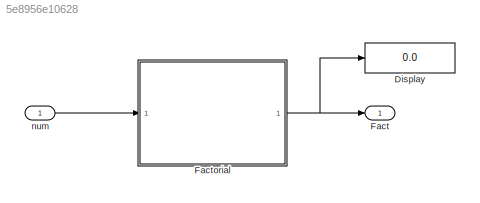
MODEL slx_5e8956e10628
KIND model
CONFIG AbsTol = auto
CONFIG EnableMultiTasking = off
CONFIG FixedStep = auto
CONFIG MaxStep = auto
CONFIG MinStep = auto
CONFIG RelTol = 1e-3
CONFIG SampleTimeConstraint = Unconstrained
CONFIG Solver = VariableStepAuto
CONFIG SolverName = VariableStepAuto
CONFIG StartTime = 0.0
CONFIG StopTime = 10.0
BLOCK [Display] Display
  Decimation = 1
  Ports = [1]
BLOCK [Outport] Fact
  IconDisplay = Port number
  OutDataTypeStr = uint32
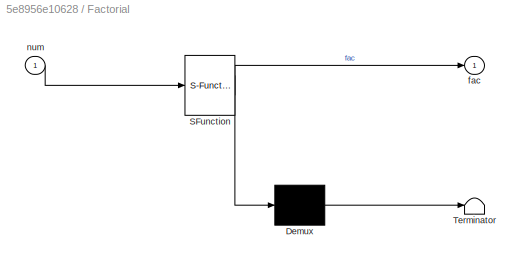
BLOCK [SubSystem] Factorial
  ErrorFcn = Stateflow.Translate.translate
  PermitHierarchicalResolution = ExplicitOnly
  Ports = [1, 1]
  RequestExecContextInheritance = off
  SFBlockType = Chart
  TreatAsAtomicUnit = on
BLOCK [Demux] Factorial/ Demux 
  Outputs = 1
  Ports = [1, 1]
BLOCK [S-Function] Factorial/ SFunction 
  EnableBusSupport = on
  FunctionName = sf_sfun
  PortCounts = [1 2]
  Ports = [1, 2]
  SFcnIsStateOwnerBlock = off
  SFunctionDeploymentMode = off
  Tag = Stateflow S-Function FactorialFlowChart 3
BLOCK [Terminator] Factorial/ Terminator 
BLOCK [Outport] Factorial/fac
  IconDisplay = Port number
BLOCK [Inport] Factorial/num
  IconDisplay = Port number
BLOCK [Inport] num 
  IconDisplay = Port number
  OutDataTypeStr = uint16
NET Factorial:1 -> Display:1, Fact:1
LINE num :1 -> Factorial:1
note: NET lines group one-source signal fan-out (src -> all destinations, sorted); 1:1 wires keep LINE
CHART Factorial states=0 transitions=6
